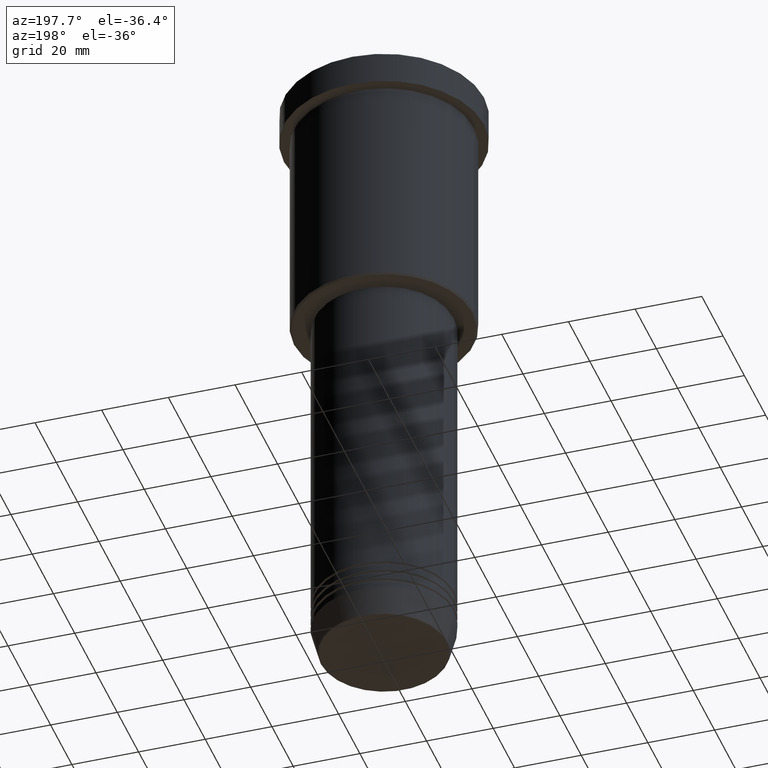
[diagram: clean part render]
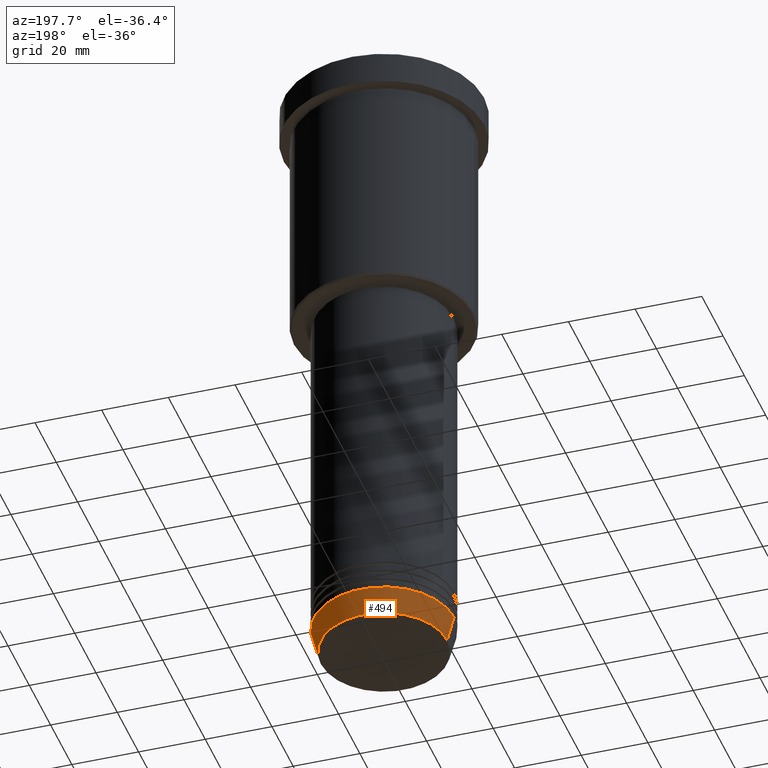
[diagram: same view with one face highlighted and labeled with its STEP entity id]
A machine part, auxiliary view. The second image highlights one B-rep face of the part: STEP entity #494.
In plain terms, the highlighted conical surface has half-angle 15 deg.
Its self-contained STEP definition (entity closure, byte-faithful):
#34 = LINE ( 'NONE', #678, #526 ) ;
#68 = CARTESIAN_POINT ( 'NONE',  ( -21.00000000000000000, 2.571758278209441661E-15, -183.0000000000000284 ) ) ;
#89 = ORIENTED_EDGE ( 'NONE', *, *, #749, .T. ) ;
#136 = LINE ( 'NONE', #663, #702 ) ;
#149 = EDGE_CURVE ( 'NONE', #872, #860, #299, .T. ) ;
#154 = CARTESIAN_POINT ( 'NONE',  ( 21.00000000000000000, 0.000000000000000000, -183.0000000000000284 ) ) ;
#155 = CARTESIAN_POINT ( 'NONE',  ( -18.95570587970606624, 2.446581365662755730E-15, -190.6294095225512706 ) ) ;
#172 = AXIS2_PLACEMENT_3D ( 'NONE', #477, #757, #873 ) ;
#200 = CARTESIAN_POINT ( 'NONE',  ( 18.95570587970606624, 0.000000000000000000, -190.6294095225512706 ) ) ;
#209 = DIRECTION ( 'NONE',  ( -0.000000000000000000, -0.000000000000000000, 1.000000000000000000 ) ) ;
#295 = CARTESIAN_POINT ( 'NONE',  ( 0.000000000000000000, 0.000000000000000000, -190.6294095225512706 ) ) ;
#299 = CIRCLE ( 'NONE', #756, 18.95570587970606624 ) ;
#323 = DIRECTION ( 'NONE',  ( -0.2588190451025213501, 3.169619151431772337E-17, 0.9659258262890680902 ) ) ;
#374 = DIRECTION ( 'NONE',  ( 1.000000000000000000, 0.000000000000000000, 0.000000000000000000 ) ) ;
#439 = ORIENTED_EDGE ( 'NONE', *, *, #149, .T. ) ;
#477 = CARTESIAN_POINT ( 'NONE',  ( 0.000000000000000000, 0.000000000000000000, -183.0000000000000284 ) ) ;
#494 = ADVANCED_FACE ( 'NONE', ( #1052 ), #838, .T. ) ;
#526 = VECTOR ( 'NONE', #699, 1000.000000000000000 ) ;
#537 = VERTEX_POINT ( 'NONE', #68 ) ;
#568 = AXIS2_PLACEMENT_3D ( 'NONE', #890, #971, #607 ) ;
#602 = VERTEX_POINT ( 'NONE', #154 ) ;
#607 = DIRECTION ( 'NONE',  ( 1.000000000000000000, 0.000000000000000000, 0.000000000000000000 ) ) ;
#663 = CARTESIAN_POINT ( 'NONE',  ( -21.00000000000000000, 2.571758278209441661E-15, -183.0000000000000284 ) ) ;
#678 = CARTESIAN_POINT ( 'NONE',  ( 21.00000000000000000, 0.000000000000000000, -183.0000000000000284 ) ) ;
#699 = DIRECTION ( 'NONE',  ( 0.2588190451025213501, 0.000000000000000000, 0.9659258262890680902 ) ) ;
#702 = VECTOR ( 'NONE', #323, 1000.000000000000000 ) ;
#744 = ORIENTED_EDGE ( 'NONE', *, *, #1009, .F. ) ;
#749 = EDGE_CURVE ( 'NONE', #860, #537, #136, .T. ) ;
#756 = AXIS2_PLACEMENT_3D ( 'NONE', #295, #209, #374 ) ;
#757 = DIRECTION ( 'NONE',  ( -0.000000000000000000, -0.000000000000000000, 1.000000000000000000 ) ) ;
#838 = CONICAL_SURFACE ( 'NONE', #568, 21.00000000000000000, 0.2617993877991500740 ) ;
#860 = VERTEX_POINT ( 'NONE', #155 ) ;
#872 = VERTEX_POINT ( 'NONE', #200 ) ;
#873 = DIRECTION ( 'NONE',  ( 1.000000000000000000, 0.000000000000000000, 0.000000000000000000 ) ) ;
#883 = EDGE_CURVE ( 'NONE', #872, #602, #34, .T. ) ;
#890 = CARTESIAN_POINT ( 'NONE',  ( 0.000000000000000000, 0.000000000000000000, -183.0000000000000284 ) ) ;
#971 = DIRECTION ( 'NONE',  ( -0.000000000000000000, -0.000000000000000000, 1.000000000000000000 ) ) ;
#978 = ORIENTED_EDGE ( 'NONE', *, *, #883, .F. ) ;
#1009 = EDGE_CURVE ( 'NONE', #602, #537, #1082, .T. ) ;
#1010 = EDGE_LOOP ( 'NONE', ( #439, #89, #744, #978 ) ) ;
#1052 = FACE_OUTER_BOUND ( 'NONE', #1010, .T. ) ;
#1082 = CIRCLE ( 'NONE', #172, 21.00000000000000000 ) ;